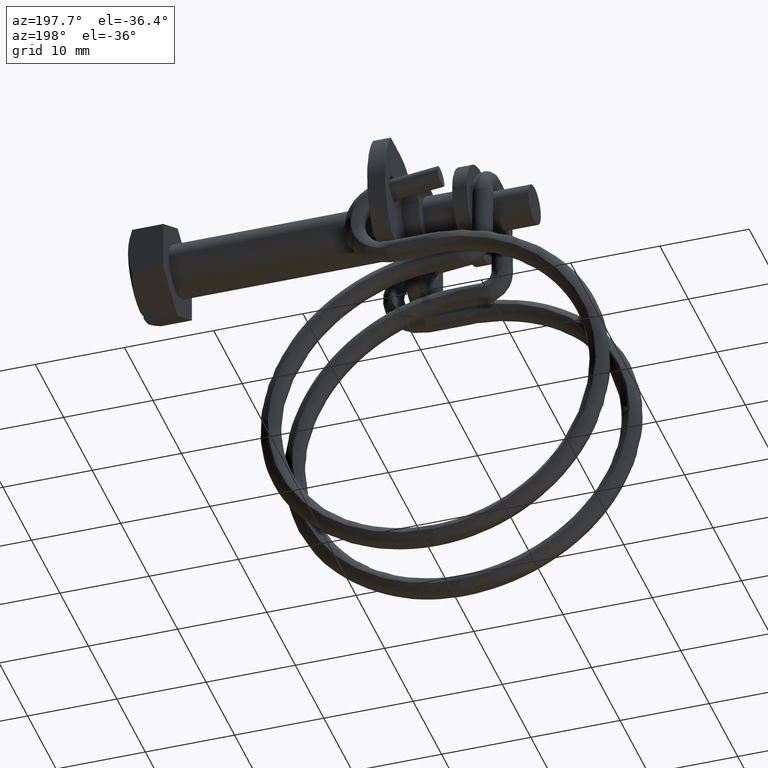
[diagram: clean part render]
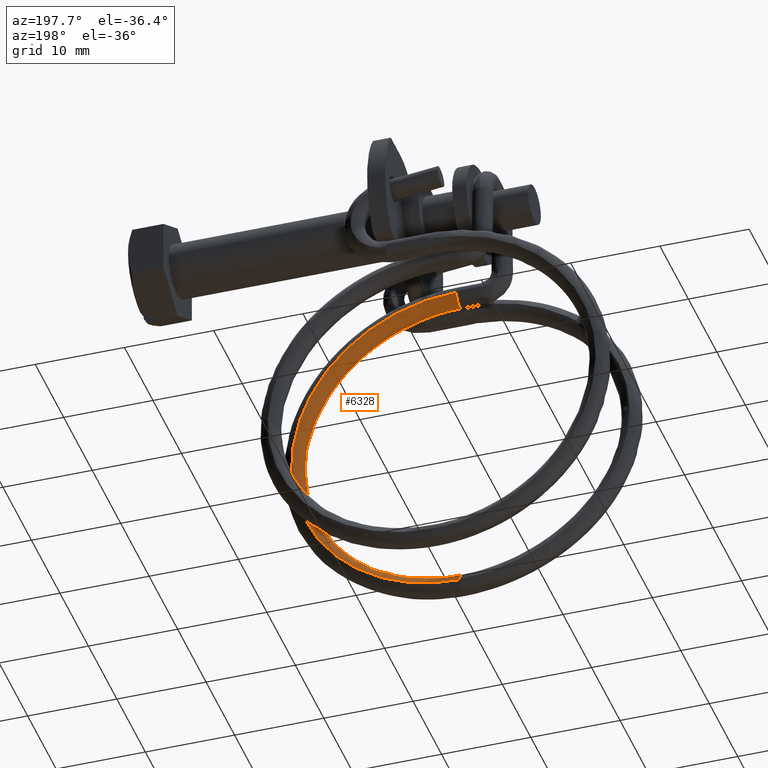
[diagram: same view with one face highlighted and labeled with its STEP entity id]
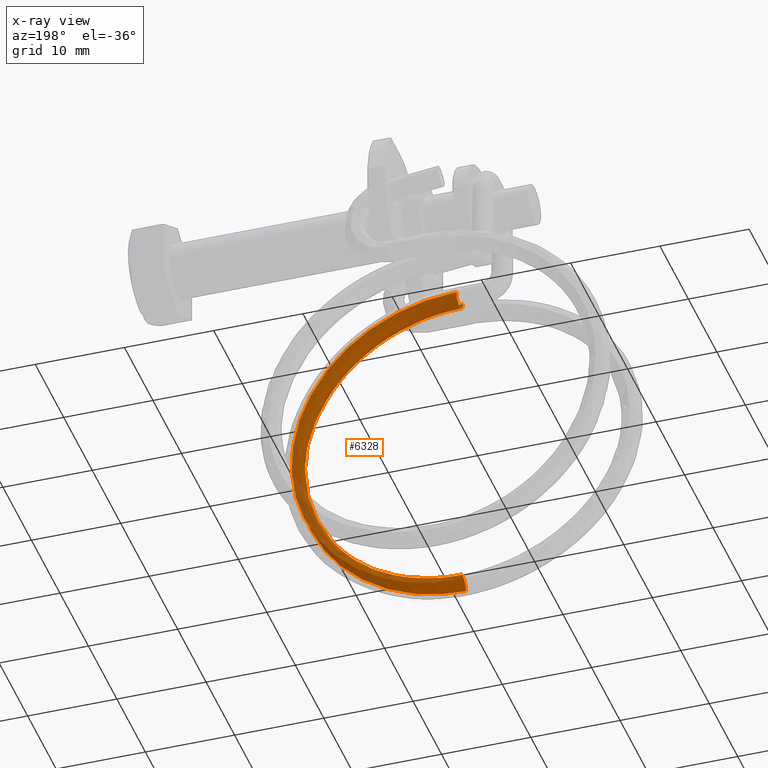
[diagram: x-ray of the same camera — body ghosted, the highlighted face saturated]
A machine part, auxiliary view. The second image highlights one B-rep face of the part: STEP entity #6328.
The next image is the same camera in x-ray: the body ghosted, the highlighted face saturated — about 7% of this face is hidden behind the body in this view.
In plain terms, the highlighted face is a freeform B-spline surface patch.
Its self-contained STEP definition (entity closure, byte-faithful):
#5973=CARTESIAN_POINT('',(-30.454386614647849,-4.450193500627297,-8.502394281599269));
#5974=VERTEX_POINT('',#5973);
#5975=CARTESIAN_POINT('',(-30.454386614502219,-3.627537379546684,-8.886502448389170));
#5976=VERTEX_POINT('',#5975);
#5977=CARTESIAN_POINT('',(-30.454386614647849,-4.450193500627297,-8.502394281599269));
#5978=CARTESIAN_POINT('',(-30.454386614634998,-4.379048423577383,-8.582244615144944));
#5979=CARTESIAN_POINT('',(-30.454386614609501,-4.236725587517872,-8.702793907409458));
#5980=CARTESIAN_POINT('',(-30.454386614559919,-3.956826191772108,-8.842248574854569));
#5981=CARTESIAN_POINT('',(-30.454386614524310,-3.753877674429379,-8.882657032089544));
#5982=CARTESIAN_POINT('',(-30.454386614502219,-3.627537379546684,-8.886502448389170));
#5983=B_SPLINE_CURVE_WITH_KNOTS('',3,(#5977,#5978,#5979,#5980,#5981,#5982),.UNSPECIFIED.,.F.,.U.,(4,1,1,4),(0.000000014742994,0.320839157781740,0.554166442191099,0.933339842867114),.UNSPECIFIED.);
#5984=EDGE_CURVE('',#5974,#5976,#5983,.T.);
#6000=CARTESIAN_POINT('',(-30.454386614502209,-2.442401410167070,-7.772746310770300));
#6001=VERTEX_POINT('',#6000);
#6010=CARTESIAN_POINT('',(-30.454386614502219,-3.627537379546684,-8.886502448389170));
#6011=CARTESIAN_POINT('',(-30.454386614502202,-3.486460718403632,-8.891016570674282));
#6012=CARTESIAN_POINT('',(-30.454386614502230,-3.269014758473664,-8.857252219315127));
#6013=CARTESIAN_POINT('',(-30.454386614502209,-3.003276295838172,-8.733644569643854));
#6014=CARTESIAN_POINT('',(-30.454386614502219,-2.820161222737582,-8.599673656546333));
#6015=CARTESIAN_POINT('',(-30.454386614502219,-2.666713101699826,-8.432550481765519));
#6016=CARTESIAN_POINT('',(-30.454386614502070,-2.504518455923981,-8.166024321092758));
#6017=CARTESIAN_POINT('',(-30.454386614502418,-2.447158611965544,-7.932662288341479));
#6018=CARTESIAN_POINT('',(-30.454386614502209,-2.442401410167070,-7.772746310770300));
#6019=B_SPLINE_CURVE_WITH_KNOTS('',3,(#6010,#6011,#6012,#6013,#6014,#6015,#6016,#6017,#6018),.UNSPECIFIED.,.F.,.U.,(4,1,1,1,1,1,4),(0.000000062859786,0.423388863932393,0.649199499814721,0.875012359119328,1.100804440558571,1.326619385496179,1.806461105987405),.UNSPECIFIED.);
#6020=EDGE_CURVE('',#5976,#6001,#6019,.T.);
#6043=CARTESIAN_POINT('',(-30.454386614502209,-4.741293517165886,-7.701366479009998));
#6044=VERTEX_POINT('',#6043);
#6045=CARTESIAN_POINT('',(-30.454386614502209,-4.741293517165886,-7.701366479009998));
#6046=CARTESIAN_POINT('',(-30.454386614527291,-4.745637668778316,-7.837736410056384));
#6047=CARTESIAN_POINT('',(-30.454386614580919,-4.702142375333501,-8.130167271602440));
#6048=CARTESIAN_POINT('',(-30.454386614627118,-4.553250598592830,-8.387098577540428));
#6049=CARTESIAN_POINT('',(-30.454386614647849,-4.450193500627297,-8.502394281599269));
#6050=B_SPLINE_CURVE_WITH_KNOTS('',3,(#6045,#6046,#6047,#6048,#6049),.UNSPECIFIED.,.F.,.U.,(4,1,4),(0.000000016998243,0.409279536154070,0.873121413706960),.UNSPECIFIED.);
#6051=EDGE_CURVE('',#6044,#5974,#6050,.T.);
#6083=CARTESIAN_POINT('',(-31.041578026669249,-4.740172279511935,-7.665255376882654));
#6084=CARTESIAN_POINT('',(-31.041199454488389,-4.740450840873056,-7.677293941850230));
#6085=CARTESIAN_POINT('',(-31.031353089264080,-4.755216747092066,-7.990174049139530));
#6086=CARTESIAN_POINT('',(-31.021569713963249,-4.636043969086234,-8.305208394199415));
#6087=CARTESIAN_POINT('',(-31.008183653758660,-4.223686471698045,-8.743993428128270));
#6088=CARTESIAN_POINT('',(-31.004287110407489,-3.928461652661950,-8.877158850261141));
#6089=CARTESIAN_POINT('',(-31.004287110407489,-3.326613106433565,-8.895846046517171));
#6090=CARTESIAN_POINT('',(-31.008183653758660,-3.023695461908860,-8.781252748011891));
#6091=CARTESIAN_POINT('',(-31.021569713962489,-2.584910278277196,-8.368895409924040));
#6092=CARTESIAN_POINT('',(-31.031353087310499,-2.446422511418986,-8.061861400855376));
#6093=CARTESIAN_POINT('',(-31.041199450556171,-2.441749017459821,-7.748667990489633));
#6094=CARTESIAN_POINT('',(-31.041578020771791,-2.441280178335054,-7.736635396121759));
#6095=CARTESIAN_POINT('',(-30.845847555946900,-4.740172279511935,-7.665255376882654));
#6096=CARTESIAN_POINT('',(-30.845595174492988,-4.740450840873056,-7.677293941850230));
#6097=CARTESIAN_POINT('',(-30.839030931010122,-4.755216747092066,-7.990174049139530));
#6098=CARTESIAN_POINT('',(-30.832508680809571,-4.636043969086234,-8.305208394199415));
#6099=CARTESIAN_POINT('',(-30.823584640673172,-4.223686471698045,-8.743993428128270));
#6100=CARTESIAN_POINT('',(-30.820986945105730,-3.928461652661950,-8.877158850261141));
#6101=CARTESIAN_POINT('',(-30.820986945105730,-3.326613106433565,-8.895846046517171));
#6102=CARTESIAN_POINT('',(-30.823584640673172,-3.023695461908860,-8.781252748011891));
#6103=CARTESIAN_POINT('',(-30.832508680809060,-2.584910278277196,-8.368895409924040));
#6104=CARTESIAN_POINT('',(-30.839030929707739,-2.446422511418986,-8.061861400855376));
#6105=CARTESIAN_POINT('',(-30.845595171871508,-2.441749017459821,-7.748667990489633));
#6106=CARTESIAN_POINT('',(-30.845847552015261,-2.441280178335054,-7.736635396121759));
#6107=CARTESIAN_POINT('',(-30.650117085224551,-4.740172279511935,-7.665255376882654));
#6108=CARTESIAN_POINT('',(-30.649990894497599,-4.740450840873056,-7.677293941850230));
#6109=CARTESIAN_POINT('',(-30.646708772756160,-4.755216747092066,-7.990174049139530));
#6110=CARTESIAN_POINT('',(-30.643447647655890,-4.636043969086234,-8.305208394199415));
#6111=CARTESIAN_POINT('',(-30.638985627587690,-4.223686471698045,-8.743993428128270));
#6112=CARTESIAN_POINT('',(-30.637686779803960,-3.928461652661950,-8.877158850261141));
#6113=CARTESIAN_POINT('',(-30.637686779803960,-3.326613106433565,-8.895846046517171));
#6114=CARTESIAN_POINT('',(-30.638985627587690,-3.023695461908860,-8.781252748011891));
#6115=CARTESIAN_POINT('',(-30.643447647655631,-2.584910278277196,-8.368895409924040));
#6116=CARTESIAN_POINT('',(-30.646708772104969,-2.446422511418986,-8.061861400855376));
#6117=CARTESIAN_POINT('',(-30.649990893186860,-2.441749017459821,-7.748667990489633));
#6118=CARTESIAN_POINT('',(-30.650117083258731,-2.441280178335054,-7.736635396121759));
#6119=CARTESIAN_POINT('',(-28.007974748802141,-4.740171377517380,-7.665226326862864));
#6120=CARTESIAN_POINT('',(-28.009551987812610,-4.740449939548429,-7.677264913406481));
#6121=CARTESIAN_POINT('',(-28.050574736255982,-4.755215863191728,-7.990145581871560));
#6122=CARTESIAN_POINT('',(-28.091335050826860,-4.636043102499066,-8.305180484519013));
#6123=CARTESIAN_POINT('',(-28.147105171872830,-4.223685628798990,-8.743966281363480));
#6124=CARTESIAN_POINT('',(-28.163339275936149,-3.928460816658188,-8.877131925570522));
#6125=CARTESIAN_POINT('',(-28.163339275936170,-3.326612270429747,-8.895819121826399));
#6126=CARTESIAN_POINT('',(-28.147105171872820,-3.023694619009834,-8.781225601247117));
#6127=CARTESIAN_POINT('',(-28.091335050827620,-2.584909411689506,-8.368867500243598));
#6128=CARTESIAN_POINT('',(-28.050574744395259,-2.446421627518647,-8.061832933587676));
#6129=CARTESIAN_POINT('',(-28.009552004194031,-2.441748116135153,-7.748638962046243));
#6130=CARTESIAN_POINT('',(-28.007974773371242,-2.441279276340461,-7.736606346102440));
#6131=CARTESIAN_POINT('',(-23.117050145203780,-4.770384169503357,-8.638273577609514));
#6132=CARTESIAN_POINT('',(-23.121780604429091,-4.770643250580180,-8.649684751467975));
#6133=CARTESIAN_POINT('',(-23.244816135210620,-4.784902489897775,-8.946246908545682));
#6134=CARTESIAN_POINT('',(-23.367064573653959,-4.665226286278410,-9.245067693833388));
#6135=CARTESIAN_POINT('',(-23.534330461605219,-4.252179979010543,-9.661668595954307));
#6136=CARTESIAN_POINT('',(-23.583019827530279,-3.956754654559162,-9.788376447303044));
#6137=CARTESIAN_POINT('',(-23.583019827530318,-3.354906108331066,-9.807063643559863));
#6138=CARTESIAN_POINT('',(-23.534330461605261,-3.052188969221203,-9.698927915837812));
#6139=CARTESIAN_POINT('',(-23.367064573654599,-2.614092595469872,-9.308754709558185));
#6140=CARTESIAN_POINT('',(-23.244816159621930,-2.476108254124255,-9.017934257023072));
#6141=CARTESIAN_POINT('',(-23.121780653559469,-2.471941426964853,-8.721058793590666));
#6142=CARTESIAN_POINT('',(-23.117050218890618,-2.471492068023262,-8.709653587075035));
#6143=CARTESIAN_POINT('',(-16.896750841803989,-4.899445875466896,-12.794894990557200));
#6144=CARTESIAN_POINT('',(-16.905489770990009,-4.899621777133365,-12.803627249584761));
#6145=CARTESIAN_POINT('',(-17.132782458580721,-4.911717585287906,-13.030512935005101));
#6146=CARTESIAN_POINT('',(-17.358621091960490,-4.789891790573909,-13.260102988308629));
#6147=CARTESIAN_POINT('',(-17.667623808276819,-4.373904314749047,-13.581979246037420));
#6148=CARTESIAN_POINT('',(-17.757571295542459,-4.077622846622193,-13.681113735419791));
#6149=CARTESIAN_POINT('',(-17.757571295542480,-3.475774300393775,-13.699800931674851));
#6150=CARTESIAN_POINT('',(-17.667623808276868,-3.173913304959824,-13.619238565921201));
#6151=CARTESIAN_POINT('',(-17.358621091959790,-2.738758099764520,-13.323790004032739));
#6152=CARTESIAN_POINT('',(-17.132782503677589,-2.602923349084904,-13.102200269659910));
#6153=CARTESIAN_POINT('',(-16.905489861751160,-2.600919952653757,-12.875001263885959));
#6154=CARTESIAN_POINT('',(-16.896750977930079,-2.600553772690723,-12.866274958294611));
#6155=CARTESIAN_POINT('',(-12.740785038582869,-5.092577527082836,-19.014982914061399));
#6156=CARTESIAN_POINT('',(-12.752200422163900,-5.092629036314576,-19.019708932400199));
#6157=CARTESIAN_POINT('',(-13.049105587405460,-5.101489494896734,-19.142395442624689));
#6158=CARTESIAN_POINT('',(-13.344111368152110,-4.976449048036844,-19.268452911683170));
#6159=CARTESIAN_POINT('',(-13.747751729484840,-4.556063138559898,-19.448671166621370));
#6160=CARTESIAN_POINT('',(-13.865247254100041,-4.258501331996202,-19.506570479970438));
#6161=CARTESIAN_POINT('',(-13.865247254100080,-3.656652785767327,-19.525257676227660));
#6162=CARTESIAN_POINT('',(-13.747751729484930,-3.356072128770644,-19.485930486504010));
#6163=CARTESIAN_POINT('',(-13.344111368153049,-2.925315357228153,-19.332139927410189));
#6164=CARTESIAN_POINT('',(-13.049105646313951,-2.792695258052300,-19.214082756603069));
#6165=CARTESIAN_POINT('',(-12.752200540723230,-2.793927210543459,-19.091082905092168));
#6166=CARTESIAN_POINT('',(-12.740785216401029,-2.793685422369411,-19.086362819392679));
#6167=CARTESIAN_POINT('',(-11.281901926539280,-5.320387513356859,-26.351937435065199));
#6168=CARTESIAN_POINT('',(-11.294256412629990,-5.320292361610774,-26.351940021644261));
#6169=CARTESIAN_POINT('',(-11.615586896901750,-5.325338283296646,-26.351773779949799));
#6170=CARTESIAN_POINT('',(-11.934861741153510,-5.196507702188210,-26.355764420142780));
#6171=CARTESIAN_POINT('',(-12.371708141835660,-4.770935958203692,-26.368965273629168));
#6172=CARTESIAN_POINT('',(-12.498869600256510,-4.471864608976667,-26.378247552899669));
#6173=CARTESIAN_POINT('',(-12.498869600256549,-3.870016062748389,-26.396934749154450));
#6174=CARTESIAN_POINT('',(-12.371708141835599,-3.570944948414629,-26.406224593513549));
#6175=CARTESIAN_POINT('',(-11.934861741153419,-3.145374011379019,-26.419451435865529));
#6176=CARTESIAN_POINT('',(-11.615586960656730,-3.016544045695117,-26.423461069555859));
#6177=CARTESIAN_POINT('',(-11.294256540942310,-3.021590534316283,-26.423313945279130));
#6178=CARTESIAN_POINT('',(-11.281902118985411,-3.021495406358725,-26.423317266819328));
#6179=CARTESIAN_POINT('',(-12.741202934130200,-5.548192182597116,-33.688720713212412));
#6180=CARTESIAN_POINT('',(-12.752618048128410,-5.547950373294582,-33.683999978222460));
#6181=CARTESIAN_POINT('',(-13.049516201732880,-5.549181847071453,-33.560983850583902));
#6182=CARTESIAN_POINT('',(-13.344515015700800,-5.416561220132328,-33.442910509539757));
#6183=CARTESIAN_POINT('',(-13.748145844767460,-4.985803762619006,-33.289097857845682));
#6184=CARTESIAN_POINT('',(-13.865638594635881,-4.685222905943808,-33.249764237197589));
#6185=CARTESIAN_POINT('',(-13.865638594635920,-4.083374359715634,-33.268451433455290));
#6186=CARTESIAN_POINT('',(-13.748145844768350,-3.785812752829863,-33.326357177731687));
#6187=CARTESIAN_POINT('',(-13.344515015700880,-3.365427529323285,-33.506597525265569));
#6188=CARTESIAN_POINT('',(-13.049516260639180,-3.240387608712577,-33.632671115812236));
#6189=CARTESIAN_POINT('',(-12.752618166684121,-3.249248544476439,-33.755373852799899));
#6190=CARTESIAN_POINT('',(-12.741203111943310,-3.249300073314012,-33.760100471389741));
#6191=CARTESIAN_POINT('',(-16.897306809387729,-5.741309690046223,-39.908353103062183));
#6192=CARTESIAN_POINT('',(-16.906045380504761,-5.740943497400827,-39.899626420200207));
#6193=CARTESIAN_POINT('',(-17.133328755002388,-5.738939858077510,-39.672418733299430));
#6194=CARTESIAN_POINT('',(-17.359158134864590,-5.603104813952454,-39.450820375223202));
#6195=CARTESIAN_POINT('',(-17.668148190099220,-5.167949244268960,-39.155360074543353));
#6196=CARTESIAN_POINT('',(-17.758091991854339,-4.866088142736681,-39.074794291747430));
#6197=CARTESIAN_POINT('',(-17.758091991854378,-4.264239596508467,-39.093481488005089));
#6198=CARTESIAN_POINT('',(-17.668148190098549,-3.967958234479677,-39.192619394425577));
#6199=CARTESIAN_POINT('',(-17.359158134864629,-3.551971123143344,-39.514507390949490));
#6200=CARTESIAN_POINT('',(-17.133328800098180,-3.430145619077285,-39.744105977855327));
#6201=CARTESIAN_POINT('',(-16.906045471262939,-3.442241667291195,-39.971000253173877));
#6202=CARTESIAN_POINT('',(-16.897306945509008,-3.442417578825935,-39.979732798840381));
#6203=CARTESIAN_POINT('',(-23.117525320173840,-5.870357327058920,-44.064521404934361));
#6204=CARTESIAN_POINT('',(-23.122255473000941,-5.869907964069287,-44.053116099228937));
#6205=CARTESIAN_POINT('',(-23.245283034604888,-5.865741129385634,-43.756239535033657));
#6206=CARTESIAN_POINT('',(-23.367523554855818,-5.727756728459060,-43.465417990772060));
#6207=CARTESIAN_POINT('',(-23.534778608772228,-5.289660310789504,-43.075243370188467));
#6208=CARTESIAN_POINT('',(-23.583464821023711,-4.986943158898423,-42.967107230773003));
#6209=CARTESIAN_POINT('',(-23.583464821023782,-4.385094612668993,-42.985794427023997));
#6210=CARTESIAN_POINT('',(-23.534778608772811,-4.089669301000398,-43.112502690069718));
#6211=CARTESIAN_POINT('',(-23.367523554855850,-3.676623037650753,-43.529105006491541));
#6212=CARTESIAN_POINT('',(-23.245283059014000,-3.556946889956076,-43.827926765773761));
#6213=CARTESIAN_POINT('',(-23.122255522127510,-3.571206133096224,-44.124489904386387));
#6214=CARTESIAN_POINT('',(-23.117525393855299,-3.571465214543469,-44.135901058991152));
#6215=CARTESIAN_POINT('',(-28.007514444685061,-5.900566881168816,-45.037464374867859));
#6216=CARTESIAN_POINT('',(-28.009091980455430,-5.900098039312763,-45.025431723717801));
#6217=CARTESIAN_POINT('',(-28.050122447390891,-5.895424574605486,-44.712238397011440));
#6218=CARTESIAN_POINT('',(-28.090890431076069,-5.756936784708130,-44.405204473025833));
#6219=CARTESIAN_POINT('',(-28.146671045353340,-5.318151607295895,-43.992847335279492));
#6220=CARTESIAN_POINT('',(-28.162908203887429,-5.015233964578908,-43.878254095105937));
#6221=CARTESIAN_POINT('',(-28.162908203887429,-4.413385418353276,-43.896941291362921));
#6222=CARTESIAN_POINT('',(-28.146671045354051,-4.118160597506684,-44.030106655163443));
#6223=CARTESIAN_POINT('',(-28.090890431076080,-3.705803093897034,-44.468891488751282));
#6224=CARTESIAN_POINT('',(-28.050122455530900,-3.586630335075546,-44.783925624507752));
#6225=CARTESIAN_POINT('',(-28.009091996839199,-3.601396208136784,-45.096805522355503));
#6226=CARTESIAN_POINT('',(-28.007514469258052,-3.601674768349311,-45.108844019148329));
#6227=CARTESIAN_POINT('',(-30.649812548114770,-5.900567395405441,-45.037480936522890));
#6228=CARTESIAN_POINT('',(-30.649686553728181,-5.900098553306266,-45.025448277543241));
#6229=CARTESIAN_POINT('',(-30.646409538645379,-5.895425082275603,-44.712254747192929));
#6230=CARTESIAN_POINT('',(-30.643153487534882,-5.756937286095179,-44.405220620908970));
#6231=CARTESIAN_POINT('',(-30.638698409931258,-5.318152100085183,-43.992863206328693));
#6232=CARTESIAN_POINT('',(-30.637401583026900,-5.015234454869421,-43.878269885556229));
#6233=CARTESIAN_POINT('',(-30.637401583026900,-4.413385908640776,-43.896957081812168));
#6234=CARTESIAN_POINT('',(-30.638698409931010,-4.118161090295988,-44.030122526212182));
#6235=CARTESIAN_POINT('',(-30.643153487534882,-3.705803595286308,-44.468907636633467));
#6236=CARTESIAN_POINT('',(-30.646409537995460,-3.586630842745567,-44.783941974690258));
#6237=CARTESIAN_POINT('',(-30.649686552419741,-3.601396722130578,-45.096822076181603));
#6238=CARTESIAN_POINT('',(-30.649812546152269,-3.601675282586235,-45.108860580803963));
#6239=CARTESIAN_POINT('',(-30.845559053965300,-5.900567499675278,-45.037484294676482));
#6240=CARTESIAN_POINT('',(-30.845306858514800,-5.900098657508876,-45.025451633531752));
#6241=CARTESIAN_POINT('',(-30.838747452834550,-5.895425184729684,-44.712258046868811));
#6242=CARTESIAN_POINT('',(-30.832230009487571,-5.756937386811948,-44.405223864636277));
#6243=CARTESIAN_POINT('',(-30.823312546308181,-5.318152198424746,-43.992866373500789));
#6244=CARTESIAN_POINT('',(-30.820716765224550,-5.015234552517352,-43.878273030442898));
#6245=CARTESIAN_POINT('',(-30.820716765224550,-4.413386006288452,-43.896960226698837));
#6246=CARTESIAN_POINT('',(-30.823312546307680,-4.118161188635551,-44.030125693384278));
#6247=CARTESIAN_POINT('',(-30.832230009487571,-3.705803696003245,-44.468910880360767));
#6248=CARTESIAN_POINT('',(-30.838747451533639,-3.586630945199639,-44.783945274366133));
#6249=CARTESIAN_POINT('',(-30.845306855895760,-3.601396826333187,-45.096825432170093));
#6250=CARTESIAN_POINT('',(-30.845559050037082,-3.601675386856070,-45.108863938957533));
#6251=CARTESIAN_POINT('',(-31.041305559815829,-5.900567603945114,-45.037487652830080));
#6252=CARTESIAN_POINT('',(-31.040927163301419,-5.900098761711485,-45.025454989520242));
#6253=CARTESIAN_POINT('',(-31.031085367023710,-5.895425287183764,-44.712261346544679));
#6254=CARTESIAN_POINT('',(-31.021306531440260,-5.756937487528715,-44.405227108363583));
#6255=CARTESIAN_POINT('',(-31.007926682685099,-5.318152296764310,-43.992869540672878));
#6256=CARTESIAN_POINT('',(-31.004031947422199,-5.015234650165283,-43.878276175329567));
#6257=CARTESIAN_POINT('',(-31.004031947422199,-4.413386103936128,-43.896963371585507));
#6258=CARTESIAN_POINT('',(-31.007926682684339,-4.118161286975115,-44.030128860556367));
#6259=CARTESIAN_POINT('',(-31.021306531440260,-3.705803796720183,-44.468914124088087));
#6260=CARTESIAN_POINT('',(-31.031085365071810,-3.586631047653713,-44.783948574041993));
#6261=CARTESIAN_POINT('',(-31.040927159371801,-3.601396930535795,-45.096828788158582));
#6262=CARTESIAN_POINT('',(-31.041305553921880,-3.601675491125905,-45.108867297111097));
#6263=B_SPLINE_SURFACE_WITH_KNOTS('',3,3,((#6083,#6095,#6107,#6119,#6131,#6143,#6155,#6167,#6179,#6191,#6203,#6215,#6227,#6239,#6251),(#6084,#6096,#6108,#6120,#6132,#6144,#6156,#6168,#6180,#6192,#6204,#6216,#6228,#6240,#6252),(#6085,#6097,#6109,#6121,#6133,#6145,#6157,#6169,#6181,#6193,#6205,#6217,#6229,#6241,#6253),(#6086,#6098,#6110,#6122,#6134,#6146,#6158,#6170,#6182,#6194,#6206,#6218,#6230,#6242,#6254),(#6087,#6099,#6111,#6123,#6135,#6147,#6159,#6171,#6183,#6195,#6207,#6219,#6231,#6243,#6255),(#6088,#6100,#6112,#6124,#6136,#6148,#6160,#6172,#6184,#6196,#6208,#6220,#6232,#6244,#6256),(#6089,#6101,#6113,#6125,#6137,#6149,#6161,#6173,#6185,#6197,#6209,#6221,#6233,#6245,#6257),(#6090,#6102,#6114,#6126,#6138,#6150,#6162,#6174,#6186,#6198,#6210,#6222,#6234,#6246,#6258),(#6091,#6103,#6115,#6127,#6139,#6151,#6163,#6175,#6187,#6199,#6211,#6223,#6235,#6247,#6259),(#6092,#6104,#6116,#6128,#6140,#6152,#6164,#6176,#6188,#6200,#6212,#6224,#6236,#6248,#6260),(#6093,#6105,#6117,#6129,#6141,#6153,#6165,#6177,#6189,#6201,#6213,#6225,#6237,#6249,#6261),(#6094,#6106,#6118,#6130,#6142,#6154,#6166,#6178,#6190,#6202,#6214,#6226,#6238,#6250,#6262)),.UNSPECIFIED.,.F.,.F.,.U.,(4,1,2,2,2,1,4),(4,2,1,1,1,1,1,1,1,2,4),(0.0,0.036148550377905,0.939857571074825,1.843566591771744,2.747275612468664,3.650984633165583,3.687132995870196),(0.0,0.587238713455397,7.927722531124789,15.268206348794310,22.608690166463671,29.949173984133051,37.289657801802569,44.630141619471956,51.970625437141472,59.311109254810852,59.898348772448927),.UNSPECIFIED.);
#6264=CARTESIAN_POINT('',(-30.454066261055949,-5.899446053480765,-45.001366476247242));
#6265=VERTEX_POINT('',#6264);
#6266=CARTESIAN_POINT('',(-30.454386614502209,-4.741293517165886,-7.701366479009998));
#6267=CARTESIAN_POINT('',(-28.012488475726780,-4.741293517165886,-7.701366479009998));
#6268=CARTESIAN_POINT('',(-25.572412207129769,-4.756367988318658,-8.186861918220940));
#6269=CARTESIAN_POINT('',(-21.061355584068920,-4.814389906086253,-10.055542825708880));
#6270=CARTESIAN_POINT('',(-18.992547709532460,-4.857314487581241,-11.437991889553389));
#6271=CARTESIAN_POINT('',(-15.540145282254519,-4.964518534318257,-14.890655349322580));
#6272=CARTESIAN_POINT('',(-14.157906828894760,-5.028755826492985,-16.959511499772809));
#6273=CARTESIAN_POINT('',(-12.289625505479020,-5.168817993746075,-21.470418892624242));
#6274=CARTESIAN_POINT('',(-11.804316038457520,-5.244587804661427,-23.910696712923890));
#6275=CARTESIAN_POINT('',(-11.804456804750840,-5.396185169541728,-28.793112053132059));
#6276=CARTESIAN_POINT('',(-12.289906404814360,-5.471953141281996,-31.233330640104061));
#6277=CARTESIAN_POINT('',(-14.158382223528021,-5.612008896891137,-35.744031536560946));
#6278=CARTESIAN_POINT('',(-15.540673964543791,-5.676241638078534,-37.812741115785670));
#6279=CARTESIAN_POINT('',(-18.993046387471310,-5.783436399450095,-41.265105526769339));
#6280=CARTESIAN_POINT('',(-21.061770447733359,-5.826356283928620,-42.647403316352069));
#6281=CARTESIAN_POINT('',(-25.572533728308478,-5.884371871562894,-44.515880352522991));
#6282=CARTESIAN_POINT('',(-28.011971415142529,-5.899444752630930,-45.001324580585987));
#6283=CARTESIAN_POINT('',(-30.454066261055949,-5.899446053480765,-45.001366476247242));
#6284=B_SPLINE_CURVE_WITH_KNOTS('',3,(#6266,#6267,#6268,#6269,#6270,#6271,#6272,#6273,#6274,#6275,#6276,#6277,#6278,#6279,#6280,#6281,#6282,#6283),.UNSPECIFIED.,.F.,.U.,(4,2,2,2,2,2,2,2,4),(0.611792665864965,0.660318582631844,0.708844499398724,0.757370416165603,0.805896332932482,0.854422249699362,0.902948166466241,0.951474083233121,1.0),.UNSPECIFIED.);
#6285=EDGE_CURVE('',#6044,#6265,#6284,.T.);
#6286=ORIENTED_EDGE('',*,*,#6285,.F.);
#6287=ORIENTED_EDGE('',*,*,#6051,.T.);
#6288=ORIENTED_EDGE('',*,*,#5984,.T.);
#6289=ORIENTED_EDGE('',*,*,#6020,.T.);
#6290=CARTESIAN_POINT('',(-30.454067464996601,-3.600553946483555,-45.072746308007211));
#6291=VERTEX_POINT('',#6290);
#6292=CARTESIAN_POINT('',(-30.454386614502209,-2.442401410167070,-7.772746310770300));
#6293=CARTESIAN_POINT('',(-28.012488475729061,-2.442401410167070,-7.772746310770300));
#6294=CARTESIAN_POINT('',(-25.572412222799521,-2.457475881319858,-8.258241749981226));
#6295=CARTESIAN_POINT('',(-21.061355660059991,-2.515497799087542,-10.126922657469169));
#6296=CARTESIAN_POINT('',(-18.992547830143639,-2.558422380582850,-11.509371721313640));
#6297=CARTESIAN_POINT('',(-15.540145514309041,-2.665626427319486,-14.962035181082820));
#6298=CARTESIAN_POINT('',(-14.157907127726659,-2.729863719495096,-17.030891331528760));
#6299=CARTESIAN_POINT('',(-12.289625949911031,-2.869925886747327,-21.541798724388620));
#6300=CARTESIAN_POINT('',(-11.804316561655090,-2.945695697664367,-23.982076544684020));
#6301=CARTESIAN_POINT('',(-11.804457485539240,-3.097293062542763,-28.864491884892189));
#6302=CARTESIAN_POINT('',(-12.289907164366110,-3.173061034284197,-31.304710471864102));
#6303=CARTESIAN_POINT('',(-14.158383128672179,-3.313116789893527,-35.815411368321001));
#6304=CARTESIAN_POINT('',(-15.540674936459761,-3.377349531080747,-37.884120947537220));
#6305=CARTESIAN_POINT('',(-18.993047470819079,-3.484544292452993,-41.336485358537821));
#6306=CARTESIAN_POINT('',(-21.061771575695118,-3.527464176931837,-42.718783148112017));
#6307=CARTESIAN_POINT('',(-25.572534916582509,-3.585479764565138,-44.587260184282961));
#6308=CARTESIAN_POINT('',(-28.011972619080900,-3.600552645633720,-45.072704412345907));
#6309=CARTESIAN_POINT('',(-30.454067464996601,-3.600553946483555,-45.072746308007211));
#6310=B_SPLINE_CURVE_WITH_KNOTS('',3,(#6292,#6293,#6294,#6295,#6296,#6297,#6298,#6299,#6300,#6301,#6302,#6303,#6304,#6305,#6306,#6307,#6308,#6309),.UNSPECIFIED.,.F.,.U.,(4,2,2,2,2,2,2,2,4),(0.611792665864965,0.660318582631844,0.708844499398724,0.757370416165603,0.805896332932482,0.854422249699362,0.902948166466241,0.951474083233121,1.0),.UNSPECIFIED.);
#6311=EDGE_CURVE('',#6001,#6291,#6310,.T.);
#6312=ORIENTED_EDGE('',*,*,#6311,.T.);
#6313=CARTESIAN_POINT('',(-30.454066261055949,-5.899446053480765,-45.001366476247242));
#6314=CARTESIAN_POINT('',(-30.454061106588050,-5.890102455346949,-44.700442203177367));
#6315=CARTESIAN_POINT('',(-30.454056048736689,-5.756937033208375,-44.405217384185320));
#6316=CARTESIAN_POINT('',(-30.454048982091869,-5.318152001720974,-43.992860039156632));
#6317=CARTESIAN_POINT('',(-30.454047016813679,-5.015234357193982,-43.878266740669517));
#6318=CARTESIAN_POINT('',(-30.454047332004571,-4.413385810965822,-43.896953936925513));
#6319=CARTESIAN_POINT('',(-30.454049610532820,-4.118160991932220,-44.030119359040057));
#6320=CARTESIAN_POINT('',(-30.454057122924912,-3.705803646849220,-44.468904390456672));
#6321=CARTESIAN_POINT('',(-30.454062310528698,-3.591210348349740,-44.771822034937323));
#6322=CARTESIAN_POINT('',(-30.454067464996601,-3.600553946483555,-45.072746308007211));
#6323=B_SPLINE_CURVE_WITH_KNOTS('',3,(#6313,#6314,#6315,#6316,#6317,#6318,#6319,#6320,#6321,#6322),.UNSPECIFIED.,.F.,.U.,(4,2,2,2,4),(0.500000000000000,0.625000000000000,0.750000000000000,0.875000000000000,1.0),.UNSPECIFIED.);
#6324=EDGE_CURVE('',#6265,#6291,#6323,.T.);
#6325=ORIENTED_EDGE('',*,*,#6324,.F.);
#6326=EDGE_LOOP('',(#6286,#6287,#6288,#6289,#6312,#6325));
#6327=FACE_OUTER_BOUND('',#6326,.T.);
#6328=ADVANCED_FACE('',(#6327),#6263,.T.);